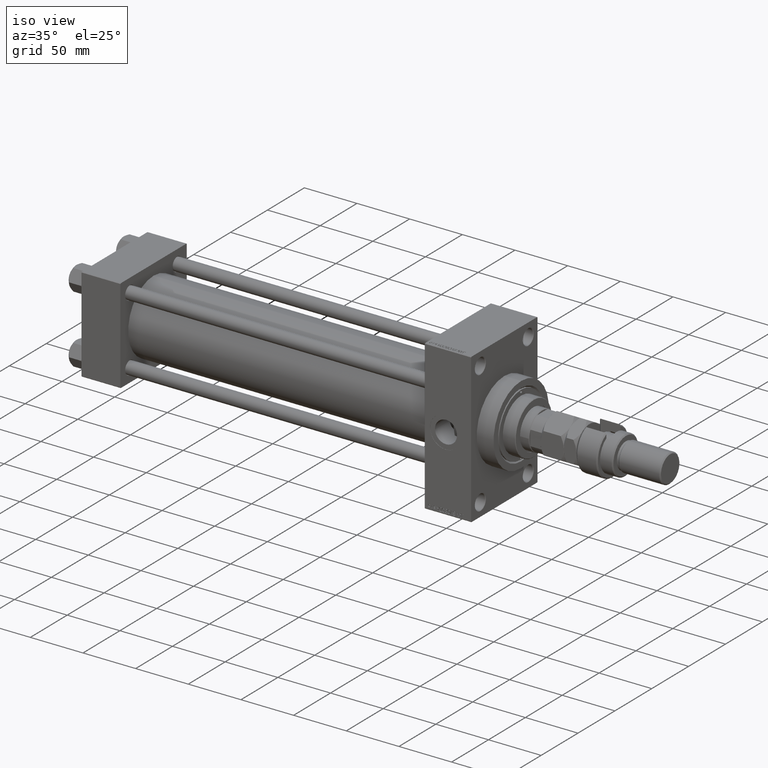
[diagram: clean part render]
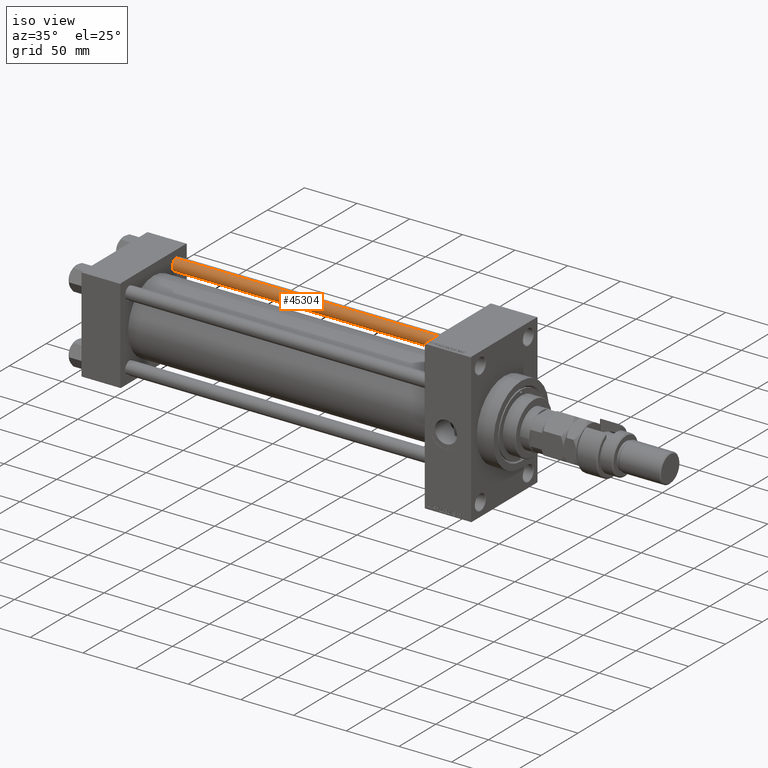
[diagram: same view with one face highlighted and labeled with its STEP entity id]
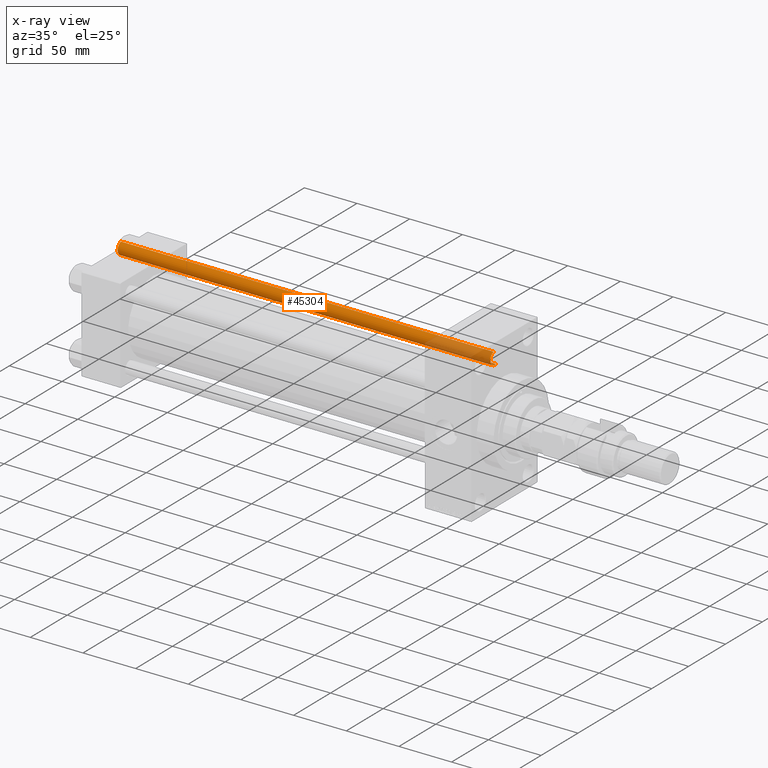
[diagram: x-ray of the same camera — body ghosted, the highlighted face saturated]
A machine part, iso view. The second image highlights one B-rep face of the part: STEP entity #45304.
The next image is the same camera in x-ray: the body ghosted, the highlighted face saturated — about 16% of this face is hidden behind the body in this view.
In plain terms, the highlighted cylindrical surface (edge-blend (fillet) strip) has radius 6 mm, axis along (-1, -0, 0).
Its self-contained STEP definition (entity closure, byte-faithful):
#166 = DIRECTION ( 'NONE',  ( -0.000000000000000000, -0.000000000000000000, -1.000000000000000000 ) ) ;
#571 = EDGE_CURVE ( 'NONE', #22813, #11873, #14812, .T. ) ;
#908 = VERTEX_POINT ( 'NONE', #15635 ) ;
#3006 = DIRECTION ( 'NONE',  ( -0.000000000000000000, -0.000000000000000000, -1.000000000000000000 ) ) ;
#5155 = FACE_OUTER_BOUND ( 'NONE', #46105, .T. ) ;
#5781 = ORIENTED_EDGE ( 'NONE', *, *, #25400, .T. ) ;
#11873 = VERTEX_POINT ( 'NONE', #16683 ) ;
#12543 = DIRECTION ( 'NONE',  ( -1.000000000000000000, 0.000000000000000000, 0.000000000000000000 ) ) ;
#14812 = CIRCLE ( 'NONE', #33456, 6.000000000000000888 ) ;
#15623 = CARTESIAN_POINT ( 'NONE',  ( 0.000000000000000000, 0.000000000000000000, 355.0000000000000000 ) ) ;
#15635 = CARTESIAN_POINT ( 'NONE',  ( 6.000000000000000888, 7.347880794884120722E-16, 0.5000000000001114664 ) ) ;
#16052 = CIRCLE ( 'NONE', #17665, 6.000000000000000888 ) ;
#16683 = CARTESIAN_POINT ( 'NONE',  ( -6.000000000000000888, 0.000000000000000000, 354.5000000000000000 ) ) ;
#16690 = VERTEX_POINT ( 'NONE', #32033 ) ;
#17665 = AXIS2_PLACEMENT_3D ( 'NONE', #21408, #40712, #25218 ) ;
#18900 = AXIS2_PLACEMENT_3D ( 'NONE', #15623, #31133, #12543 ) ;
#18903 = VECTOR ( 'NONE', #3006, 1000.000000000000000 ) ;
#19781 = CARTESIAN_POINT ( 'NONE',  ( 6.000000000000000888, 7.347880794884120722E-16, 355.0000000000000000 ) ) ;
#21408 = CARTESIAN_POINT ( 'NONE',  ( 0.000000000000000000, 0.000000000000000000, 0.5000000000001114664 ) ) ;
#22813 = VERTEX_POINT ( 'NONE', #30517 ) ;
#23368 = ORIENTED_EDGE ( 'NONE', *, *, #571, .T. ) ;
#25218 = DIRECTION ( 'NONE',  ( 1.000000000000000000, 0.000000000000000000, 0.000000000000000000 ) ) ;
#25400 = EDGE_CURVE ( 'NONE', #16690, #908, #16052, .T. ) ;
#25882 = CARTESIAN_POINT ( 'NONE',  ( 0.000000000000000000, 0.000000000000000000, 354.5000000000000000 ) ) ;
#26101 = ORIENTED_EDGE ( 'NONE', *, *, #42612, .T. ) ;
#26432 = CARTESIAN_POINT ( 'NONE',  ( -6.000000000000000888, 0.000000000000000000, 355.0000000000000000 ) ) ;
#29190 = DIRECTION ( 'NONE',  ( 0.000000000000000000, 0.000000000000000000, -1.000000000000000000 ) ) ;
#30358 = ORIENTED_EDGE ( 'NONE', *, *, #43992, .F. ) ;
#30517 = CARTESIAN_POINT ( 'NONE',  ( 6.000000000000000888, 7.347880794884120722E-16, 354.5000000000000000 ) ) ;
#31133 = DIRECTION ( 'NONE',  ( -0.000000000000000000, -0.000000000000000000, -1.000000000000000000 ) ) ;
#31952 = VECTOR ( 'NONE', #166, 1000.000000000000000 ) ;
#32033 = CARTESIAN_POINT ( 'NONE',  ( -6.000000000000000888, 0.000000000000000000, 0.5000000000001114664 ) ) ;
#33456 = AXIS2_PLACEMENT_3D ( 'NONE', #25882, #29190, #40633 ) ;
#37346 = LINE ( 'NONE', #26432, #18903 ) ;
#40633 = DIRECTION ( 'NONE',  ( 1.000000000000000000, 0.000000000000000000, 0.000000000000000000 ) ) ;
#40712 = DIRECTION ( 'NONE',  ( -0.000000000000000000, -0.000000000000000000, 1.000000000000000000 ) ) ;
#42382 = LINE ( 'NONE', #19781, #31952 ) ;
#42612 = EDGE_CURVE ( 'NONE', #11873, #16690, #37346, .T. ) ;
#43822 = CYLINDRICAL_SURFACE ( 'NONE', #18900, 6.000000000000000888 ) ;
#43992 = EDGE_CURVE ( 'NONE', #22813, #908, #42382, .T. ) ;
#45304 = ADVANCED_FACE ( 'NONE', ( #5155 ), #43822, .T. ) ;
#46105 = EDGE_LOOP ( 'NONE', ( #30358, #23368, #26101, #5781 ) ) ;